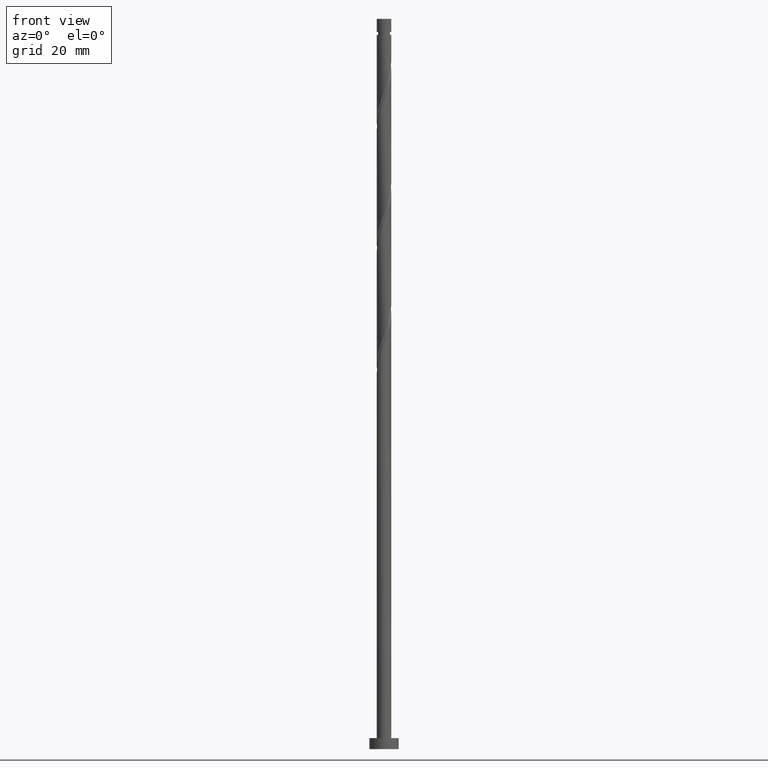
[diagram: clean part render]
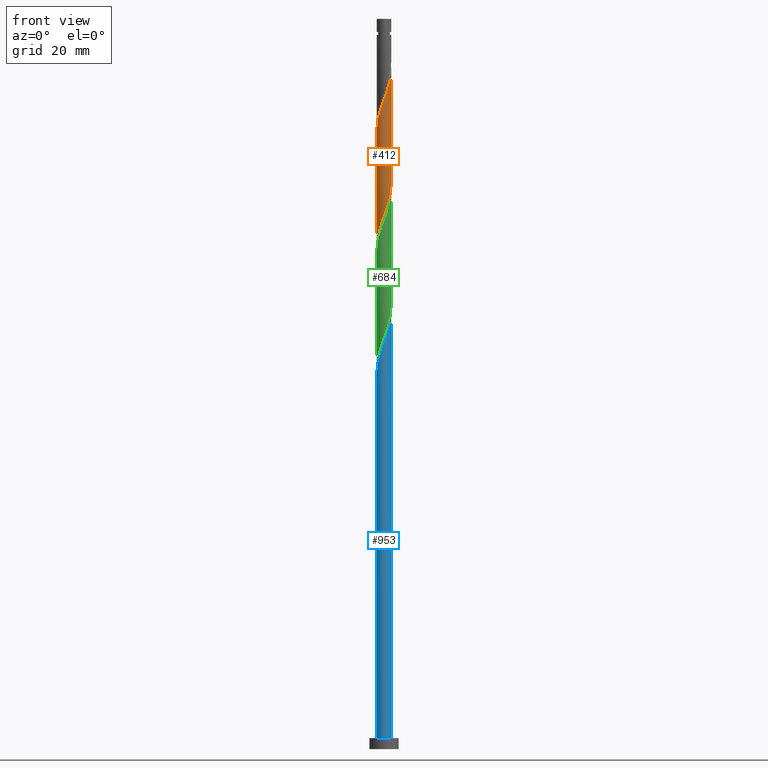
[diagram: same view with three faces highlighted in distinct colors, each labeled with its STEP entity id]
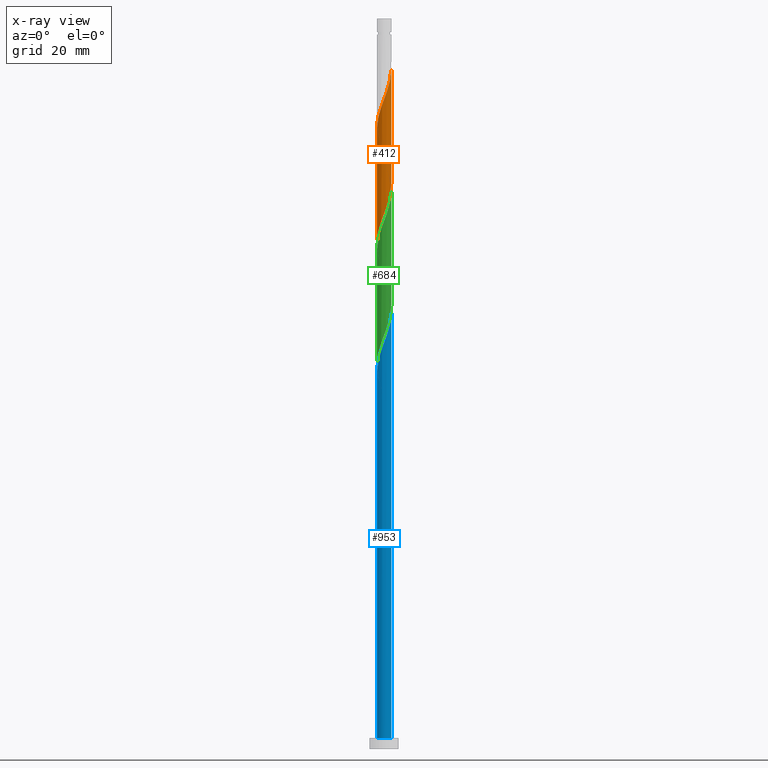
[diagram: x-ray of the same camera — body ghosted, the three highlighted faces saturated]
A machine part, front view with three faces highlighted in distinct colors.
The next image is the same camera in x-ray (body ghosted, the three faces saturated) — at least one of them is partly hidden behind the body in this view.
Their STEP definitions:

[orange] entity #412 — the highlighted cylindrical surface (edge-blend (fillet) strip) has radius 2 mm, axis along (-0, -0, -1).
#8 = VERTEX_POINT ( 'NONE', #682 ) ;
#37 = EDGE_CURVE ( 'NONE', #1155, #8, #182, .T. ) ;
#43 = CARTESIAN_POINT ( 'NONE',  ( -1.980049565276632118, -0.3856594865056678922, 139.3673581867560074 ) ) ;
#144 = CARTESIAN_POINT ( 'NONE',  ( 1.996223298870951623, -0.1228517034671593872, 185.8951359645336936 ) ) ;
#177 = CARTESIAN_POINT ( 'NONE',  ( 1.521943481029064849, -1.324015695162689576, 182.4229137423115787 ) ) ;
#182 = LINE ( 'NONE', #543, #1396 ) ;
#208 = CARTESIAN_POINT ( 'NONE',  ( -1.521943481029063516, -1.324015695162686468, 142.1451359645337504 ) ) ;
#217 = CARTESIAN_POINT ( 'NONE',  ( -1.896407278838824428, -0.6353262412077163024, 140.0618026312004361 ) ) ;
#299 = CARTESIAN_POINT ( 'NONE',  ( -2.000000000000003109, -0.2010075630518382839, 170.0872179007352258 ) ) ;
#307 = CARTESIAN_POINT ( 'NONE',  ( -0.1228517034671583741, -1.996223298870951623, 177.5618026312003792 ) ) ;
#309 = CARTESIAN_POINT ( 'NONE',  ( 0.8849929959097643239, -1.812764992401016073, 149.0895804089782075 ) ) ;
#318 = CARTESIAN_POINT ( 'NONE',  ( -1.104504345536227561, -1.667354236715041571, 174.7840248534225793 ) ) ;
#321 = EDGE_CURVE ( 'NONE', #1155, #1624, #1196, .T. ) ;
#338 = CARTESIAN_POINT ( 'NONE',  ( -1.127404036555502254, -1.672808912829662153, 143.5340248534226077 ) ) ;
#351 = CARTESIAN_POINT ( 'NONE',  ( -0.3979949748426497846, -1.959999999999999520, 145.6173581867560074 ) ) ;
#393 = CARTESIAN_POINT ( 'NONE',  ( 2.000000000000001776, 4.710442099740260541E-16, 186.2204581982125262 ) ) ;
#412 = ADVANCED_FACE ( 'NONE', ( #916 ), #1440, .T. ) ;
#423 = CARTESIAN_POINT ( 'NONE',  ( -0.8849929959097668775, -1.812764992401018072, 175.4784692978670364 ) ) ;
#430 = CARTESIAN_POINT ( 'NONE',  ( 1.999999999999999556, 1.742115887681728257E-15, 155.0142581752994317 ) ) ;
#447 = CARTESIAN_POINT ( 'NONE',  ( -1.960000000000001741, -0.3979949748426495071, 170.6173581867559506 ) ) ;
#455 = CARTESIAN_POINT ( 'NONE',  ( -0.6353262412077183008, -1.896407278838825761, 176.1729137423115503 ) ) ;
#513 = EDGE_LOOP ( 'NONE', ( #1378, #958, #1645, #1380 ) ) ;
#529 = LINE ( 'NONE', #809, #1690 ) ;
#543 = CARTESIAN_POINT ( 'NONE',  ( -2.000000000000000000, 0.000000000000000000, 200.0000000000000000 ) ) ;
#573 = CARTESIAN_POINT ( 'NONE',  ( 0.1399560795713527817, -2.012397032465269575, 178.2562470756448647 ) ) ;
#682 = CARTESIAN_POINT ( 'NONE',  ( -1.999999999999999556, 3.334693930927256533E-15, 138.3475915086327461 ) ) ;
#694 = CARTESIAN_POINT ( 'NONE',  ( -0.3856594865056694466, -1.980049565276635226, 176.8673581867559790 ) ) ;
#711 = CARTESIAN_POINT ( 'NONE',  ( 1.667354236715040905, -1.104504345536228227, 183.1173581867558653 ) ) ;
#712 = CARTESIAN_POINT ( 'NONE',  ( 1.324015695162686246, -1.521943481029063516, 150.4784692978670932 ) ) ;
#742 = CARTESIAN_POINT ( 'NONE',  ( -1.667354236715039351, -1.104504345536226007, 141.4506915200893502 ) ) ;
#754 = CARTESIAN_POINT ( 'NONE',  ( -1.996223298870949847, -0.1228517034671571528, 138.6729137423115787 ) ) ;
#778 = VERTEX_POINT ( 'NONE', #430 ) ;
#796 = CARTESIAN_POINT ( 'NONE',  ( 0.000000000000000000, 0.000000000000000000, 200.0000000000000000 ) ) ;
#809 = CARTESIAN_POINT ( 'NONE',  ( 2.000000000000000000, 2.449293598294706414E-16, 200.0000000000000000 ) ) ;
#830 = CARTESIAN_POINT ( 'NONE',  ( 2.000000000000000888, -0.2010075630518398104, 154.4808318061101033 ) ) ;
#838 = CARTESIAN_POINT ( 'NONE',  ( -1.498412303996176309, -1.324673758792283884, 173.3951359645337220 ) ) ;
#846 = CARTESIAN_POINT ( 'NONE',  ( -1.324015695162689576, -1.521943481029064849, 174.0895804089781791 ) ) ;
#852 = CARTESIAN_POINT ( 'NONE',  ( 0.8917189533347237296, -1.790205940182199695, 180.3395804089781223 ) ) ;
#861 = CARTESIAN_POINT ( 'NONE',  ( 1.980049565276635226, -0.3856594865056705013, 185.2006915200892365 ) ) ;
#881 = CARTESIAN_POINT ( 'NONE',  ( -1.324673758792283662, -1.498412303996174089, 142.8395804089781791 ) ) ;
#884 = CARTESIAN_POINT ( 'NONE',  ( -1.999999999999999556, -0.06148390331534703962, 138.5107551966609094 ) ) ;
#916 = FACE_OUTER_BOUND ( 'NONE', #513, .T. ) ;
#958 = ORIENTED_EDGE ( 'NONE', *, *, #321, .F. ) ;
#961 = CARTESIAN_POINT ( 'NONE',  ( 1.672808912829661487, -1.127404036555502920, 151.8673581867559221 ) ) ;
#976 = CARTESIAN_POINT ( 'NONE',  ( -1.672808912829664818, -1.127404036555502698, 172.7006915200892649 ) ) ;
#985 = CARTESIAN_POINT ( 'NONE',  ( 1.907602967534731020, -0.6560338701139466488, 153.2562470756448647 ) ) ;
#991 = CARTESIAN_POINT ( 'NONE',  ( 1.812764992401018072, -0.8849929959097668775, 183.8118026312003792 ) ) ;
#1028 = CARTESIAN_POINT ( 'NONE',  ( -1.999999999999999556, 3.334693930927256533E-15, 138.3475915086327461 ) ) ;
#1035 = CARTESIAN_POINT ( 'NONE',  ( -0.1399560795713542805, -2.012397032465266911, 146.3118026312004076 ) ) ;
#1075 = AXIS2_PLACEMENT_3D ( 'NONE', #796, #1081, #1301 ) ;
#1081 = DIRECTION ( 'NONE',  ( -0.000000000000000000, -0.000000000000000000, -1.000000000000000000 ) ) ;
#1088 = DIRECTION ( 'NONE',  ( -0.000000000000000000, -0.000000000000000000, -1.000000000000000000 ) ) ;
#1110 = EDGE_CURVE ( 'NONE', #778, #8, #1562, .T. ) ;
#1118 = CARTESIAN_POINT ( 'NONE',  ( -2.000000000000002220, 1.099103156606060727E-15, 169.5537915315458974 ) ) ;
#1137 = CARTESIAN_POINT ( 'NONE',  ( -0.8917189533347242847, -1.790205940182196587, 144.2284692978670932 ) ) ;
#1155 = VERTEX_POINT ( 'NONE', #1213 ) ;
#1181 = CARTESIAN_POINT ( 'NONE',  ( -1.812764992401016073, -0.8849929959097643239, 140.7562470756448931 ) ) ;
#1196 =( BOUNDED_CURVE ( )  B_SPLINE_CURVE ( 2, ( #1118, #299, #447, #1497, #1657, #976, #838, #846, #318, #423, #455, #694, #307, #573, #1503, #1365, #852, #1254, #1377, #177, #711, #991, #1522, #861, #144, #1487, #1348 ),
 .UNSPECIFIED., .F., .T. ) 
 B_SPLINE_CURVE_WITH_KNOTS ( ( 3, 2, 2, 2, 2, 2, 2, 2, 2, 2, 2, 2, 2, 3 ),
 ( 0.5545317669814460171, 0.5625000000000000000, 0.5729166666666667407, 0.5833333333333332593, 0.5937500000000000000, 0.6041666666666667407, 0.6145833333333332593, 0.6250000000000000000, 0.6354166666666667407, 0.6458333333333332593, 0.6562500000000000000, 0.6666666666666667407, 0.6770833333333332593, 0.6795317669814464612 ),
 .UNSPECIFIED. ) 
 CURVE ( )  GEOMETRIC_REPRESENTATION_ITEM ( )  RATIONAL_B_SPLINE_CURVE ( ( 0.9062941362546576007, 0.9031415850403613499, 0.9090909090909370383, 0.9013135103398551840, 0.9090909090909370383, 0.9013135103398551840, 0.9090909090909370383, 0.9013135103398551840, 0.9090909090909370383, 0.9013135103398551840, 0.9090909090909370383, 0.9013135103398551840, 0.9090909090909370383, 0.9013135103398551840, 0.9090909090909370383, 0.9013135103398551840, 0.9090909090909370383, 0.9013135103398551840, 0.9090909090909370383, 0.9013135103398551840, 0.9090909090909370383, 0.9013135103398551840, 0.9090909090909370383, 0.9013135103398551840, 0.9090909090909370383, 0.9072628343904305392, 0.9062941362546570456 ) ) 
 REPRESENTATION_ITEM ( '' )  );
#1211 = DIRECTION ( 'NONE',  ( -0.000000000000000000, -0.000000000000000000, -1.000000000000000000 ) ) ;
#1213 = CARTESIAN_POINT ( 'NONE',  ( -2.000000000000002220, 1.099103156606060727E-15, 169.5537915315458974 ) ) ;
#1222 = CARTESIAN_POINT ( 'NONE',  ( 1.790205940182196143, -0.8917189533347249508, 152.5618026312004076 ) ) ;
#1254 = CARTESIAN_POINT ( 'NONE',  ( 1.127404036555502476, -1.672808912829665484, 181.0340248534226362 ) ) ;
#1264 = CARTESIAN_POINT ( 'NONE',  ( 0.3856594865056673371, -1.980049565276632562, 147.7006915200893218 ) ) ;
#1301 = DIRECTION ( 'NONE',  ( -1.000000000000000000, 0.000000000000000000, 0.000000000000000000 ) ) ;
#1348 = CARTESIAN_POINT ( 'NONE',  ( 2.000000000000001776, 4.710442099740260541E-16, 186.2204581982125262 ) ) ;
#1351 = CARTESIAN_POINT ( 'NONE',  ( 1.999999999999999556, 1.742115887681728257E-15, 155.0142581752994317 ) ) ;
#1365 = CARTESIAN_POINT ( 'NONE',  ( 0.6560338701139455386, -1.907602967534734795, 179.6451359645337220 ) ) ;
#1377 = CARTESIAN_POINT ( 'NONE',  ( 1.324673758792283662, -1.498412303996176309, 181.7284692978670364 ) ) ;
#1378 = ORIENTED_EDGE ( 'NONE', *, *, #1576, .F. ) ;
#1380 = ORIENTED_EDGE ( 'NONE', *, *, #1110, .F. ) ;
#1396 = VECTOR ( 'NONE', #1088, 1000.000000000000000 ) ;
#1417 = CARTESIAN_POINT ( 'NONE',  ( -0.6560338701139460937, -1.907602967534731242, 144.9229137423115787 ) ) ;
#1440 = CYLINDRICAL_SURFACE ( 'NONE', #1075, 2.000000000000000000 ) ;
#1487 = CARTESIAN_POINT ( 'NONE',  ( 2.000000000000002665, -0.06148390331534162728, 186.0572945101844482 ) ) ;
#1488 = CARTESIAN_POINT ( 'NONE',  ( 1.498412303996174089, -1.324673758792283662, 151.1729137423115503 ) ) ;
#1497 = CARTESIAN_POINT ( 'NONE',  ( -1.907602967534734795, -0.6560338701139457607, 171.3118026312003792 ) ) ;
#1503 = CARTESIAN_POINT ( 'NONE',  ( 0.3979949748426493961, -1.960000000000001741, 178.9506915200892365 ) ) ;
#1515 = CARTESIAN_POINT ( 'NONE',  ( 1.104504345536225118, -1.667354236715040461, 149.7840248534226646 ) ) ;
#1522 = CARTESIAN_POINT ( 'NONE',  ( 1.896407278838825761, -0.6353262412077184118, 184.5062470756448079 ) ) ;
#1562 =( BOUNDED_CURVE ( )  B_SPLINE_CURVE ( 2, ( #1351, #830, #1633, #985, #1222, #961, #1488, #712, #1515, #309, #1631, #1264, #1700, #1035, #351, #1417, #1137, #338, #881, #208, #742, #1181, #217, #43, #754, #884, #1028 ),
 .UNSPECIFIED., .F., .T. ) 
 B_SPLINE_CURVE_WITH_KNOTS ( ( 3, 2, 2, 2, 2, 2, 2, 2, 2, 2, 2, 2, 2, 3 ),
 ( 0.5545317669814461281, 0.5625000000000000000, 0.5729166666666666297, 0.5833333333333333703, 0.5937500000000000000, 0.6041666666666666297, 0.6145833333333333703, 0.6250000000000000000, 0.6354166666666666297, 0.6458333333333333703, 0.6562500000000000000, 0.6666666666666666297, 0.6770833333333333703, 0.6795317669814462391 ),
 .UNSPECIFIED. ) 
 CURVE ( )  GEOMETRIC_REPRESENTATION_ITEM ( )  RATIONAL_B_SPLINE_CURVE ( ( 0.9062941362546507174, 0.9031415850403547996, 0.9090909090909303769, 0.9013135103398488557, 0.9090909090909303769, 0.9013135103398488557, 0.9090909090909303769, 0.9013135103398488557, 0.9090909090909303769, 0.9013135103398488557, 0.9090909090909303769, 0.9013135103398488557, 0.9090909090909303769, 0.9013135103398488557, 0.9090909090909303769, 0.9013135103398488557, 0.9090909090909303769, 0.9013135103398488557, 0.9090909090909303769, 0.9013135103398488557, 0.9090909090909303769, 0.9013135103398488557, 0.9090909090909303769, 0.9013135103398488557, 0.9090909090909303769, 0.9072628343904242110, 0.9062941362546507174 ) ) 
 REPRESENTATION_ITEM ( '' )  );
#1576 = EDGE_CURVE ( 'NONE', #1624, #778, #529, .T. ) ;
#1624 = VERTEX_POINT ( 'NONE', #393 ) ;
#1631 = CARTESIAN_POINT ( 'NONE',  ( 0.6353262412077160803, -1.896407278838824872, 148.3951359645337789 ) ) ;
#1633 = CARTESIAN_POINT ( 'NONE',  ( 1.959999999999999520, -0.3979949748426498957, 153.9506915200892934 ) ) ;
#1645 = ORIENTED_EDGE ( 'NONE', *, *, #37, .T. ) ;
#1657 = CARTESIAN_POINT ( 'NONE',  ( -1.790205940182199251, -0.8917189533347243957, 172.0062470756448363 ) ) ;
#1690 = VECTOR ( 'NONE', #1211, 1000.000000000000000 ) ;
#1700 = CARTESIAN_POINT ( 'NONE',  ( 0.1228517034671565838, -1.996223298870949847, 147.0062470756448931 ) ) ;

[blue] entity #953 — the highlighted cylindrical surface (edge-blend (fillet) strip) has radius 2 mm, axis along (-0, -0, -1).
#9 = CARTESIAN_POINT ( 'NONE',  ( -2.000000000000001776, -2.362697942091940289E-15, 102.8871248648792260 ) ) ;
#33 = DIRECTION ( 'NONE',  ( -1.000000000000000000, 0.000000000000000000, 0.000000000000000000 ) ) ;
#76 = CARTESIAN_POINT ( 'NONE',  ( 2.000000000000000000, 2.449293598294706414E-16, 3.000000000000000000 ) ) ;
#101 = CARTESIAN_POINT ( 'NONE',  ( 0.3979949748426493961, -1.960000000000001741, 112.2840248534226220 ) ) ;
#102 = VERTEX_POINT ( 'NONE', #589 ) ;
#111 = CARTESIAN_POINT ( 'NONE',  ( -0.8849929959097668775, -1.812764992401018072, 108.8118026312003934 ) ) ;
#137 = CARTESIAN_POINT ( 'NONE',  ( 0.6560338701139455386, -1.907602967534734795, 112.9784692978670364 ) ) ;
#147 = VECTOR ( 'NONE', #518, 1000.000000000000000 ) ;
#234 = CIRCLE ( 'NONE', #826, 2.000000000000000000 ) ;
#245 = CARTESIAN_POINT ( 'NONE',  ( 0.000000000000000000, 0.000000000000000000, 3.000000000000000000 ) ) ;
#273 = CARTESIAN_POINT ( 'NONE',  ( 2.000000000000001776, -0.06148390331535004416, 119.3906278435177200 ) ) ;
#385 = CARTESIAN_POINT ( 'NONE',  ( 0.8917189533347237296, -1.790205940182199695, 113.6729137423114935 ) ) ;
#404 = CARTESIAN_POINT ( 'NONE',  ( -0.6353262412077183008, -1.896407278838825761, 109.5062470756448221 ) ) ;
#472 = CARTESIAN_POINT ( 'NONE',  ( -2.000000000000001776, -2.362697942091939895E-15, 102.8871248648792260 ) ) ;
#499 = ORIENTED_EDGE ( 'NONE', *, *, #1523, .F. ) ;
#510 = CARTESIAN_POINT ( 'NONE',  ( -2.000000000000000000, 0.000000000000000000, 200.0000000000000000 ) ) ;
#518 = DIRECTION ( 'NONE',  ( -0.000000000000000000, -0.000000000000000000, -1.000000000000000000 ) ) ;
#519 = CARTESIAN_POINT ( 'NONE',  ( 1.127404036555502476, -1.672808912829665484, 114.3673581867559506 ) ) ;
#569 = EDGE_LOOP ( 'NONE', ( #936, #499, #1527, #1387 ) ) ;
#589 = CARTESIAN_POINT ( 'NONE',  ( 2.000000000000001776, 1.143964509936920445E-15, 119.5537915315458690 ) ) ;
#606 = VERTEX_POINT ( 'NONE', #76 ) ;
#632 = DIRECTION ( 'NONE',  ( 0.000000000000000000, 0.000000000000000000, 1.000000000000000000 ) ) ;
#644 = VERTEX_POINT ( 'NONE', #9 ) ;
#655 = CARTESIAN_POINT ( 'NONE',  ( -1.498412303996176309, -1.324673758792283884, 106.7284692978670506 ) ) ;
#663 = CARTESIAN_POINT ( 'NONE',  ( -1.960000000000001741, -0.3979949748426495071, 103.9506915200892649 ) ) ;
#671 = CARTESIAN_POINT ( 'NONE',  ( 1.996223298870951623, -0.1228517034671593872, 119.2284692978670364 ) ) ;
#718 = CARTESIAN_POINT ( 'NONE',  ( 0.000000000000000000, 0.000000000000000000, 200.0000000000000000 ) ) ;
#777 = CARTESIAN_POINT ( 'NONE',  ( -1.324015695162689576, -1.521943481029064849, 107.4229137423115077 ) ) ;
#786 = CARTESIAN_POINT ( 'NONE',  ( 2.000000000000000000, 2.449293598294706414E-16, 200.0000000000000000 ) ) ;
#787 = CARTESIAN_POINT ( 'NONE',  ( -0.3856594865056694466, -1.980049565276635226, 110.2006915200892934 ) ) ;
#799 = CARTESIAN_POINT ( 'NONE',  ( -1.907602967534734795, -0.6560338701139457607, 104.6451359645337504 ) ) ;
#826 = AXIS2_PLACEMENT_3D ( 'NONE', #245, #632, #935 ) ;
#836 = DIRECTION ( 'NONE',  ( -0.000000000000000000, -0.000000000000000000, -1.000000000000000000 ) ) ;
#874 = LINE ( 'NONE', #786, #147 ) ;
#908 = LINE ( 'NONE', #510, #1723 ) ;
#918 = CARTESIAN_POINT ( 'NONE',  ( 0.1399560795713527817, -2.012397032465269575, 111.5895804089781791 ) ) ;
#927 = CARTESIAN_POINT ( 'NONE',  ( 2.000000000000001776, 1.143964509936920445E-15, 119.5537915315458690 ) ) ;
#935 = DIRECTION ( 'NONE',  ( 1.000000000000000000, 0.000000000000000000, 0.000000000000000000 ) ) ;
#936 = ORIENTED_EDGE ( 'NONE', *, *, #1334, .F. ) ;
#953 = ADVANCED_FACE ( 'NONE', ( #1219 ), #1512, .T. ) ;
#1010 = CARTESIAN_POINT ( 'NONE',  ( -2.000000000000002665, -0.2010075630518425582, 103.4205512340684976 ) ) ;
#1063 = CARTESIAN_POINT ( 'NONE',  ( -1.672808912829664818, -1.127404036555502698, 106.0340248534226077 ) ) ;
#1072 = CARTESIAN_POINT ( 'NONE',  ( 1.667354236715040905, -1.104504345536228227, 116.4506915200892792 ) ) ;
#1173 = CARTESIAN_POINT ( 'NONE',  ( 1.812764992401018072, -0.8849929959097668775, 117.1451359645337220 ) ) ;
#1192 = CARTESIAN_POINT ( 'NONE',  ( -1.790205940182199251, -0.8917189533347243957, 105.3395804089781791 ) ) ;
#1202 = CARTESIAN_POINT ( 'NONE',  ( 1.521943481029064849, -1.324015695162689576, 115.7562470756448505 ) ) ;
#1219 = FACE_OUTER_BOUND ( 'NONE', #569, .T. ) ;
#1302 = CARTESIAN_POINT ( 'NONE',  ( -2.000000000000000000, 0.000000000000000000, 3.000000000000000000 ) ) ;
#1303 = CARTESIAN_POINT ( 'NONE',  ( -1.104504345536227561, -1.667354236715041571, 108.1173581867559221 ) ) ;
#1333 = CARTESIAN_POINT ( 'NONE',  ( -0.1228517034671583741, -1.996223298870951623, 110.8951359645337078 ) ) ;
#1334 = EDGE_CURVE ( 'NONE', #102, #606, #874, .T. ) ;
#1387 = ORIENTED_EDGE ( 'NONE', *, *, #1655, .T. ) ;
#1425 =( BOUNDED_CURVE ( )  B_SPLINE_CURVE ( 2, ( #472, #1010, #663, #799, #1192, #1063, #655, #777, #1303, #111, #404, #787, #1333, #918, #101, #137, #385, #519, #1432, #1202, #1072, #1173, #1590, #1584, #671, #273, #927 ),
 .UNSPECIFIED., .F., .T. ) 
 B_SPLINE_CURVE_WITH_KNOTS ( ( 3, 2, 2, 2, 2, 2, 2, 2, 2, 2, 2, 2, 2, 3 ),
 ( 0.05453176698144627382, 0.06250000000000000000, 0.07291666666666662966, 0.08333333333333337034, 0.09375000000000000000, 0.1041666666666666297, 0.1145833333333333703, 0.1250000000000000000, 0.1354166666666666297, 0.1458333333333333703, 0.1562500000000000000, 0.1666666666666666297, 0.1770833333333333703, 0.1795317669814462114 ),
 .UNSPECIFIED. ) 
 CURVE ( )  GEOMETRIC_REPRESENTATION_ITEM ( )  RATIONAL_B_SPLINE_CURVE ( ( 0.9062941362546571566, 0.9031415850403613499, 0.9090909090909370383, 0.9013135103398551840, 0.9090909090909370383, 0.9013135103398551840, 0.9090909090909370383, 0.9013135103398551840, 0.9090909090909370383, 0.9013135103398551840, 0.9090909090909370383, 0.9013135103398551840, 0.9090909090909370383, 0.9013135103398551840, 0.9090909090909370383, 0.9013135103398551840, 0.9090909090909370383, 0.9013135103398551840, 0.9090909090909370383, 0.9013135103398551840, 0.9090909090909370383, 0.9013135103398551840, 0.9090909090909370383, 0.9013135103398551840, 0.9090909090909370383, 0.9072628343904307613, 0.9062941362546572677 ) ) 
 REPRESENTATION_ITEM ( '' )  );
#1432 = CARTESIAN_POINT ( 'NONE',  ( 1.324673758792283662, -1.498412303996176309, 115.0618026312003792 ) ) ;
#1464 = VERTEX_POINT ( 'NONE', #1302 ) ;
#1512 = CYLINDRICAL_SURFACE ( 'NONE', #1528, 2.000000000000000000 ) ;
#1523 = EDGE_CURVE ( 'NONE', #644, #102, #1425, .T. ) ;
#1527 = ORIENTED_EDGE ( 'NONE', *, *, #1595, .T. ) ;
#1528 = AXIS2_PLACEMENT_3D ( 'NONE', #718, #836, #33 ) ;
#1584 = CARTESIAN_POINT ( 'NONE',  ( 1.980049565276635226, -0.3856594865056705013, 118.5340248534226220 ) ) ;
#1590 = CARTESIAN_POINT ( 'NONE',  ( 1.896407278838825761, -0.6353262412077184118, 117.8395804089781649 ) ) ;
#1595 = EDGE_CURVE ( 'NONE', #644, #1464, #908, .T. ) ;
#1655 = EDGE_CURVE ( 'NONE', #1464, #606, #234, .T. ) ;
#1723 = VECTOR ( 'NONE', #1750, 1000.000000000000000 ) ;
#1750 = DIRECTION ( 'NONE',  ( -0.000000000000000000, -0.000000000000000000, -1.000000000000000000 ) ) ;

[green] entity #684 — the highlighted cylindrical surface (edge-blend (fillet) strip) has radius 2 mm, axis along (-0, -0, -1).
#53 = CARTESIAN_POINT ( 'NONE',  ( -1.980049565276632118, -0.3856594865056678922, 106.0340248534226362 ) ) ;
#65 = CARTESIAN_POINT ( 'NONE',  ( 0.8849929959097643239, -1.812764992401016073, 115.7562470756448647 ) ) ;
#73 = CARTESIAN_POINT ( 'NONE',  ( -1.999999999999999556, 3.334693930927256533E-15, 105.0142581752993749 ) ) ;
#84 = CARTESIAN_POINT ( 'NONE',  ( -1.127404036555502254, -1.672808912829662153, 110.2006915200892934 ) ) ;
#92 = CARTESIAN_POINT ( 'NONE',  ( 1.959999999999999520, -0.3979949748426498957, 120.6173581867559932 ) ) ;
#139 = EDGE_CURVE ( 'NONE', #586, #1243, #867, .T. ) ;
#163 = CARTESIAN_POINT ( 'NONE',  ( 0.1399560795713527817, -2.012397032465269575, 144.9229137423114935 ) ) ;
#166 = CARTESIAN_POINT ( 'NONE',  ( 1.999999999999999556, 1.742115887681728257E-15, 121.6809248419660747 ) ) ;
#196 = CARTESIAN_POINT ( 'NONE',  ( 1.790205940182196143, -0.8917189533347249508, 119.2284692978670932 ) ) ;
#206 = VECTOR ( 'NONE', #376, 1000.000000000000000 ) ;
#214 = CARTESIAN_POINT ( 'NONE',  ( 0.6353262412077160803, -1.896407278838824872, 115.0618026312004361 ) ) ;
#262 = CARTESIAN_POINT ( 'NONE',  ( -2.000000000000000000, 0.000000000000000000, 200.0000000000000000 ) ) ;
#276 = CARTESIAN_POINT ( 'NONE',  ( -1.672808912829664818, -1.127404036555502698, 139.3673581867560074 ) ) ;
#297 = EDGE_CURVE ( 'NONE', #1505, #586, #1095, .T. ) ;
#301 = CARTESIAN_POINT ( 'NONE',  ( 1.521943481029064849, -1.324015695162689576, 149.0895804089782075 ) ) ;
#308 = ORIENTED_EDGE ( 'NONE', *, *, #297, .F. ) ;
#330 = EDGE_CURVE ( 'NONE', #1243, #382, #1362, .T. ) ;
#367 = CARTESIAN_POINT ( 'NONE',  ( 1.498412303996174089, -1.324673758792283662, 117.8395804089782075 ) ) ;
#371 = CARTESIAN_POINT ( 'NONE',  ( -2.000000000000001776, -2.362697942091939895E-15, 136.2204581982125546 ) ) ;
#376 = DIRECTION ( 'NONE',  ( -0.000000000000000000, -0.000000000000000000, -1.000000000000000000 ) ) ;
#380 = CARTESIAN_POINT ( 'NONE',  ( -0.8849929959097668775, -1.812764992401018072, 142.1451359645337220 ) ) ;
#382 = VERTEX_POINT ( 'NONE', #1452 ) ;
#443 = CARTESIAN_POINT ( 'NONE',  ( 0.8917189533347237296, -1.790205940182199695, 147.0062470756448079 ) ) ;
#449 = CARTESIAN_POINT ( 'NONE',  ( -0.1228517034671583741, -1.996223298870951623, 144.2284692978669796 ) ) ;
#467 = DIRECTION ( 'NONE',  ( -0.000000000000000000, -0.000000000000000000, -1.000000000000000000 ) ) ;
#478 = CARTESIAN_POINT ( 'NONE',  ( -1.812764992401016073, -0.8849929959097643239, 107.4229137423115361 ) ) ;
#505 = VECTOR ( 'NONE', #467, 1000.000000000000000 ) ;
#532 = CARTESIAN_POINT ( 'NONE',  ( -1.907602967534734795, -0.6560338701139457607, 137.9784692978670364 ) ) ;
#548 = CARTESIAN_POINT ( 'NONE',  ( 1.896407278838825761, -0.6353262412077184118, 151.1729137423114935 ) ) ;
#586 = VERTEX_POINT ( 'NONE', #744 ) ;
#594 = CARTESIAN_POINT ( 'NONE',  ( 0.1228517034671565838, -1.996223298870949847, 113.6729137423115645 ) ) ;
#602 = CARTESIAN_POINT ( 'NONE',  ( -0.3979949748426497846, -1.959999999999999520, 112.2840248534226504 ) ) ;
#626 = CARTESIAN_POINT ( 'NONE',  ( -1.104504345536227561, -1.667354236715041571, 141.4506915200892934 ) ) ;
#638 = CARTESIAN_POINT ( 'NONE',  ( -1.960000000000001741, -0.3979949748426495071, 137.2840248534225509 ) ) ;
#684 = ADVANCED_FACE ( 'NONE', ( #1084 ), #828, .T. ) ;
#695 = ORIENTED_EDGE ( 'NONE', *, *, #330, .F. ) ;
#697 = CARTESIAN_POINT ( 'NONE',  ( 0.3979949748426493961, -1.960000000000001741, 145.6173581867560074 ) ) ;
#702 = CARTESIAN_POINT ( 'NONE',  ( 2.000000000000001776, 1.143964509936920445E-15, 152.8871248648792118 ) ) ;
#729 = CARTESIAN_POINT ( 'NONE',  ( -0.1399560795713542805, -2.012397032465266911, 112.9784692978670932 ) ) ;
#744 = CARTESIAN_POINT ( 'NONE',  ( 2.000000000000001776, 1.143964509936920445E-15, 152.8871248648792118 ) ) ;
#760 = CARTESIAN_POINT ( 'NONE',  ( 2.000000000000001776, -0.2010075630518342871, 121.1474984727768174 ) ) ;
#828 = CYLINDRICAL_SURFACE ( 'NONE', #1475, 2.000000000000000000 ) ;
#840 = CARTESIAN_POINT ( 'NONE',  ( -0.3856594865056694466, -1.980049565276635226, 143.5340248534226362 ) ) ;
#848 = CARTESIAN_POINT ( 'NONE',  ( 1.667354236715040905, -1.104504345536228227, 149.7840248534226646 ) ) ;
#867 = LINE ( 'NONE', #1411, #505 ) ;
#891 = CARTESIAN_POINT ( 'NONE',  ( 1.999999999999999556, 1.742115887681728257E-15, 121.6809248419660747 ) ) ;
#893 = EDGE_LOOP ( 'NONE', ( #1510, #308, #1284, #695 ) ) ;
#900 = CARTESIAN_POINT ( 'NONE',  ( -1.999999999999999556, -0.06148390331534703962, 105.1774218633275098 ) ) ;
#978 = CARTESIAN_POINT ( 'NONE',  ( 1.127404036555502476, -1.672808912829665484, 147.7006915200892649 ) ) ;
#1034 = CARTESIAN_POINT ( 'NONE',  ( -0.6560338701139460937, -1.907602967534731242, 111.5895804089781791 ) ) ;
#1047 = LINE ( 'NONE', #262, #206 ) ;
#1084 = FACE_OUTER_BOUND ( 'NONE', #893, .T. ) ;
#1095 =( BOUNDED_CURVE ( )  B_SPLINE_CURVE ( 2, ( #371, #1744, #638, #532, #1713, #276, #1724, #1580, #626, #380, #1358, #840, #449, #163, #697, #1643, #443, #978, #1506, #301, #848, #1368, #548, #1648, #1616, #1629, #702 ),
 .UNSPECIFIED., .F., .T. ) 
 B_SPLINE_CURVE_WITH_KNOTS ( ( 3, 2, 2, 2, 2, 2, 2, 2, 2, 2, 2, 2, 2, 3 ),
 ( 0.3045317669814464057, 0.3125000000000000000, 0.3229166666666666297, 0.3333333333333333703, 0.3437500000000000000, 0.3541666666666666297, 0.3645833333333333703, 0.3750000000000000000, 0.3854166666666666297, 0.3958333333333333703, 0.4062500000000000000, 0.4166666666666666297, 0.4270833333333333703, 0.4295317669814457950 ),
 .UNSPECIFIED. ) 
 CURVE ( )  GEOMETRIC_REPRESENTATION_ITEM ( )  RATIONAL_B_SPLINE_CURVE ( ( 0.9062941362546571566, 0.9031415850403615719, 0.9090909090909370383, 0.9013135103398551840, 0.9090909090909370383, 0.9013135103398551840, 0.9090909090909370383, 0.9013135103398551840, 0.9090909090909370383, 0.9013135103398551840, 0.9090909090909370383, 0.9013135103398551840, 0.9090909090909370383, 0.9013135103398551840, 0.9090909090909370383, 0.9013135103398551840, 0.9090909090909370383, 0.9013135103398551840, 0.9090909090909370383, 0.9013135103398551840, 0.9090909090909370383, 0.9013135103398551840, 0.9090909090909370383, 0.9013135103398551840, 0.9090909090909370383, 0.9072628343904310944, 0.9062941362546576007 ) ) 
 REPRESENTATION_ITEM ( '' )  );
#1136 = CARTESIAN_POINT ( 'NONE',  ( -1.896407278838824428, -0.6353262412077163024, 106.7284692978670648 ) ) ;
#1145 = CARTESIAN_POINT ( 'NONE',  ( -1.521943481029063516, -1.324015695162686468, 108.8118026312004076 ) ) ;
#1165 = CARTESIAN_POINT ( 'NONE',  ( 1.104504345536225118, -1.667354236715040461, 116.4506915200893076 ) ) ;
#1243 = VERTEX_POINT ( 'NONE', #166 ) ;
#1263 = CARTESIAN_POINT ( 'NONE',  ( 1.324015695162686246, -1.521943481029063516, 117.1451359645337220 ) ) ;
#1274 = CARTESIAN_POINT ( 'NONE',  ( -1.667354236715039351, -1.104504345536226007, 108.1173581867559790 ) ) ;
#1281 = CARTESIAN_POINT ( 'NONE',  ( 1.907602967534731020, -0.6560338701139466488, 119.9229137423115361 ) ) ;
#1284 = ORIENTED_EDGE ( 'NONE', *, *, #1676, .T. ) ;
#1349 = CARTESIAN_POINT ( 'NONE',  ( 0.000000000000000000, 0.000000000000000000, 200.0000000000000000 ) ) ;
#1358 = CARTESIAN_POINT ( 'NONE',  ( -0.6353262412077183008, -1.896407278838825761, 142.8395804089781223 ) ) ;
#1362 =( BOUNDED_CURVE ( )  B_SPLINE_CURVE ( 2, ( #891, #760, #92, #1281, #196, #1546, #367, #1263, #1165, #65, #214, #1699, #594, #729, #602, #1034, #1406, #84, #1682, #1145, #1274, #478, #1136, #53, #1672, #900, #73 ),
 .UNSPECIFIED., .F., .T. ) 
 B_SPLINE_CURVE_WITH_KNOTS ( ( 3, 2, 2, 2, 2, 2, 2, 2, 2, 2, 2, 2, 2, 3 ),
 ( 0.8045317669814459061, 0.8125000000000000000, 0.8229166666666666297, 0.8333333333333333703, 0.8437500000000000000, 0.8541666666666666297, 0.8645833333333333703, 0.8750000000000000000, 0.8854166666666666297, 0.8958333333333333703, 0.9062500000000000000, 0.9166666666666666297, 0.9270833333333333703, 0.9295317669814462391 ),
 .UNSPECIFIED. ) 
 CURVE ( )  GEOMETRIC_REPRESENTATION_ITEM ( )  RATIONAL_B_SPLINE_CURVE ( ( 0.9062941362546510504, 0.9031415850403546886, 0.9090909090909303769, 0.9013135103398488557, 0.9090909090909303769, 0.9013135103398488557, 0.9090909090909303769, 0.9013135103398488557, 0.9090909090909303769, 0.9013135103398488557, 0.9090909090909303769, 0.9013135103398488557, 0.9090909090909303769, 0.9013135103398488557, 0.9090909090909303769, 0.9013135103398488557, 0.9090909090909303769, 0.9013135103398488557, 0.9090909090909303769, 0.9013135103398488557, 0.9090909090909303769, 0.9013135103398488557, 0.9090909090909303769, 0.9013135103398488557, 0.9090909090909303769, 0.9072628343904242110, 0.9062941362546507174 ) ) 
 REPRESENTATION_ITEM ( '' )  );
#1368 = CARTESIAN_POINT ( 'NONE',  ( 1.812764992401018072, -0.8849929959097668775, 150.4784692978670648 ) ) ;
#1406 = CARTESIAN_POINT ( 'NONE',  ( -0.8917189533347242847, -1.790205940182196587, 110.8951359645337646 ) ) ;
#1411 = CARTESIAN_POINT ( 'NONE',  ( 2.000000000000000000, 2.449293598294706414E-16, 200.0000000000000000 ) ) ;
#1452 = CARTESIAN_POINT ( 'NONE',  ( -1.999999999999999556, 3.334693930927256533E-15, 105.0142581752993749 ) ) ;
#1475 = AXIS2_PLACEMENT_3D ( 'NONE', #1349, #1592, #1476 ) ;
#1476 = DIRECTION ( 'NONE',  ( -1.000000000000000000, 0.000000000000000000, 0.000000000000000000 ) ) ;
#1505 = VERTEX_POINT ( 'NONE', #1675 ) ;
#1506 = CARTESIAN_POINT ( 'NONE',  ( 1.324673758792283662, -1.498412303996176309, 148.3951359645337220 ) ) ;
#1510 = ORIENTED_EDGE ( 'NONE', *, *, #139, .F. ) ;
#1546 = CARTESIAN_POINT ( 'NONE',  ( 1.672808912829661487, -1.127404036555502920, 118.5340248534226504 ) ) ;
#1580 = CARTESIAN_POINT ( 'NONE',  ( -1.324015695162689576, -1.521943481029064849, 140.7562470756448363 ) ) ;
#1592 = DIRECTION ( 'NONE',  ( -0.000000000000000000, -0.000000000000000000, -1.000000000000000000 ) ) ;
#1616 = CARTESIAN_POINT ( 'NONE',  ( 1.996223298870951623, -0.1228517034671593872, 152.5618026312003792 ) ) ;
#1629 = CARTESIAN_POINT ( 'NONE',  ( 2.000000000000001332, -0.06148390331536049414, 152.7239611768510201 ) ) ;
#1643 = CARTESIAN_POINT ( 'NONE',  ( 0.6560338701139455386, -1.907602967534734795, 146.3118026312004076 ) ) ;
#1648 = CARTESIAN_POINT ( 'NONE',  ( 1.980049565276635226, -0.3856594865056705013, 151.8673581867559790 ) ) ;
#1672 = CARTESIAN_POINT ( 'NONE',  ( -1.996223298870949847, -0.1228517034671571528, 105.3395804089782075 ) ) ;
#1675 = CARTESIAN_POINT ( 'NONE',  ( -2.000000000000001776, -2.362697942091940289E-15, 136.2204581982125546 ) ) ;
#1676 = EDGE_CURVE ( 'NONE', #1505, #382, #1047, .T. ) ;
#1682 = CARTESIAN_POINT ( 'NONE',  ( -1.324673758792283662, -1.498412303996174089, 109.5062470756448789 ) ) ;
#1699 = CARTESIAN_POINT ( 'NONE',  ( 0.3856594865056673371, -1.980049565276632562, 114.3673581867559790 ) ) ;
#1713 = CARTESIAN_POINT ( 'NONE',  ( -1.790205940182199251, -0.8917189533347243957, 138.6729137423115503 ) ) ;
#1724 = CARTESIAN_POINT ( 'NONE',  ( -1.498412303996176309, -1.324673758792283884, 140.0618026312003792 ) ) ;
#1744 = CARTESIAN_POINT ( 'NONE',  ( -2.000000000000001776, -0.2010075630518458334, 136.7538845674018262 ) ) ;